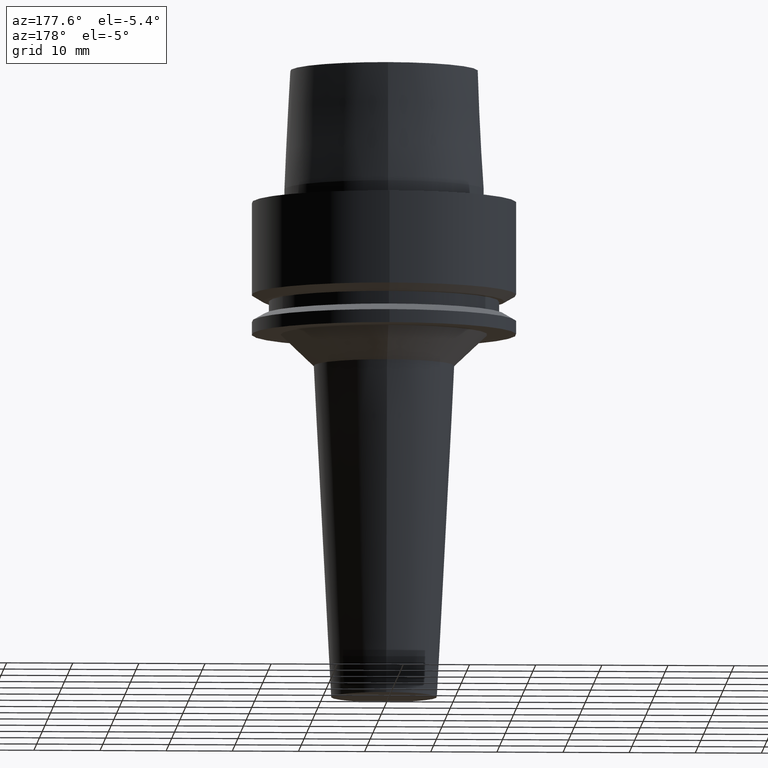
[diagram: clean part render]
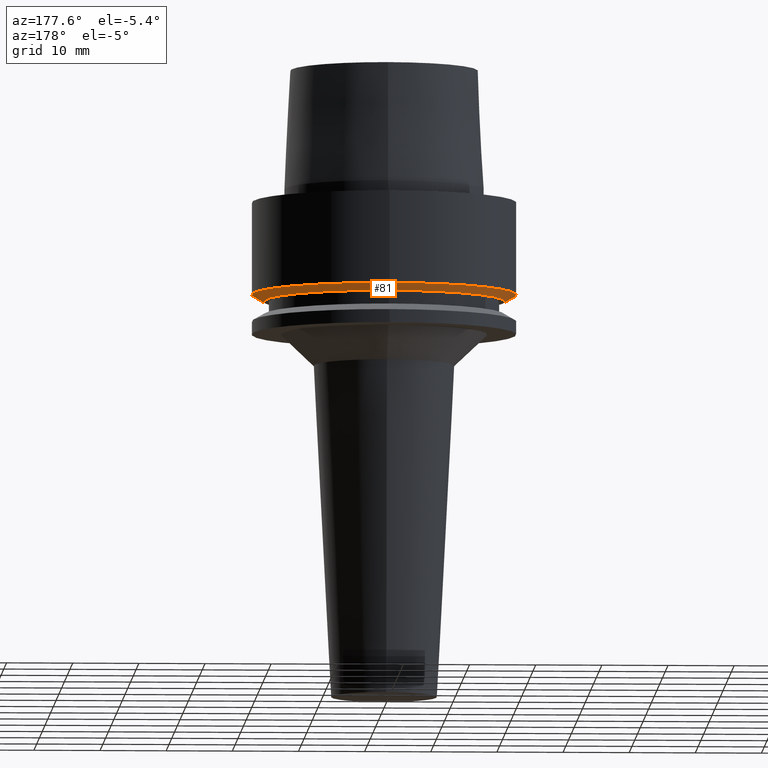
[diagram: same view with one face highlighted and labeled with its STEP entity id]
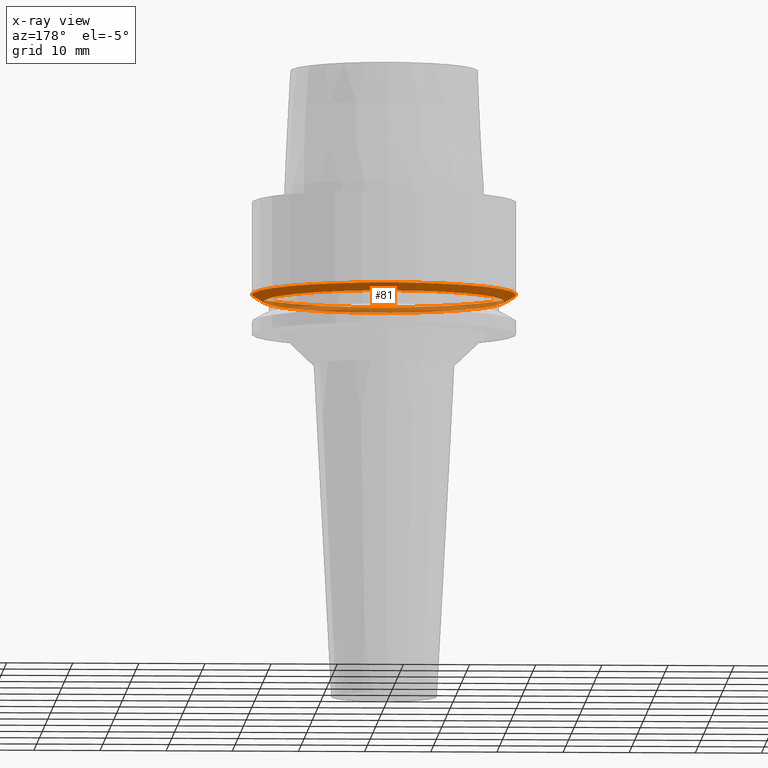
[diagram: x-ray of the same camera — body ghosted, the highlighted face saturated]
A machine part, auxiliary view. The second image highlights one B-rep face of the part: STEP entity #81.
The next image is the same camera in x-ray: the body ghosted, the highlighted face saturated — about 35% of this face is hidden behind the body in this view.
In plain terms, the highlighted conical surface has half-angle 60 deg.
Its self-contained STEP definition (entity closure, byte-faithful):
#81=ADVANCED_FACE('',(#107,#108),#109,.T.);
#107=FACE_BOUND('',#150,.T.);
#108=FACE_BOUND('',#151,.T.);
#109=CONICAL_SURFACE('',#152,19.116025405,1.04719755151904);
#150=EDGE_LOOP('',(#205));
#151=EDGE_LOOP('',(#206));
#152=AXIS2_PLACEMENT_3D('',#207,#208,#209);
#205=ORIENTED_EDGE('',*,*,#256,.F.);
#206=ORIENTED_EDGE('',*,*,#255,.T.);
#207=CARTESIAN_POINT('',(8.87234380479823E-016,1.77446876095965E-015,-14.48963703));
#208=DIRECTION('',(-6.12323399573677E-017,-1.22464679914735E-016,1.0));
#209=DIRECTION('',(-1.23259516440783E-032,1.0,1.22464679914735E-016));
#255=EDGE_CURVE('',#274,#274,#275,.T.);
#256=EDGE_CURVE('',#276,#276,#277,.T.);
#274=VERTEX_POINT('',#302);
#275=CIRCLE('',#303,20.0);
#276=VERTEX_POINT('',#304);
#277=CIRCLE('',#305,18.23205081);
#302=CARTESIAN_POINT('',(8.55983661599131E-016,20.0,-13.97927406));
#303=AXIS2_PLACEMENT_3D('',#335,#336,#337);
#304=CARTESIAN_POINT('',(9.18485099360515E-016,18.23205081,-15.0));
#305=AXIS2_PLACEMENT_3D('',#338,#339,#340);
#335=CARTESIAN_POINT('',(8.55983661599131E-016,1.71196732319826E-015,-13.97927406));
#336=DIRECTION('',(6.12323399573677E-017,1.22464679914735E-016,-1.0));
#337=DIRECTION('',(-1.23259516440783E-032,1.0,1.22464679914735E-016));
#338=CARTESIAN_POINT('',(9.18485099360515E-016,1.83697019872103E-015,-15.0));
#339=DIRECTION('',(6.12323399573677E-017,1.22464679914735E-016,-1.0));
#340=DIRECTION('',(-1.23259516440783E-032,1.0,1.22464679914735E-016));